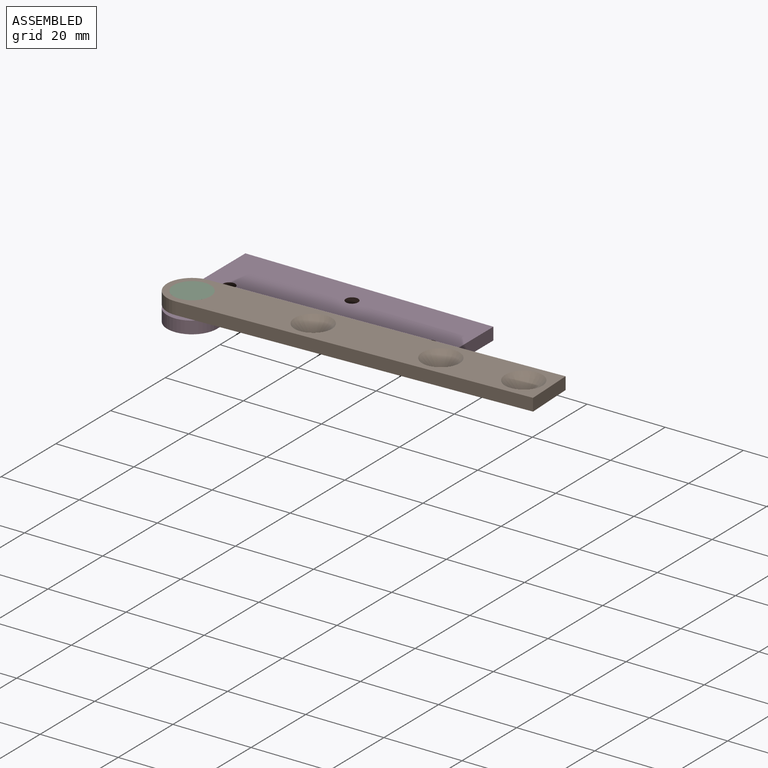
[diagram: assembled view]
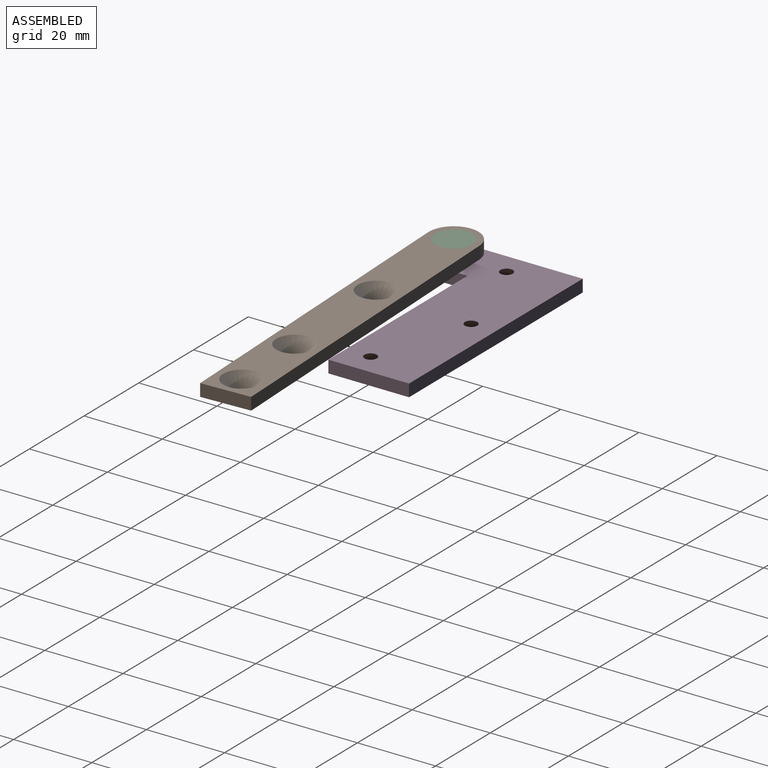
[diagram: assembled view, second angle]
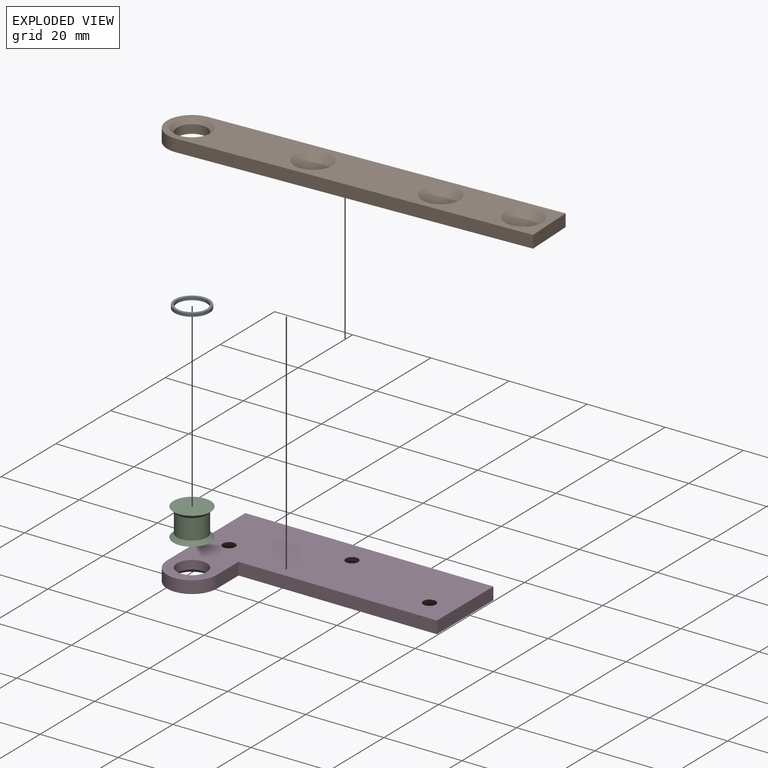
[diagram: exploded view]
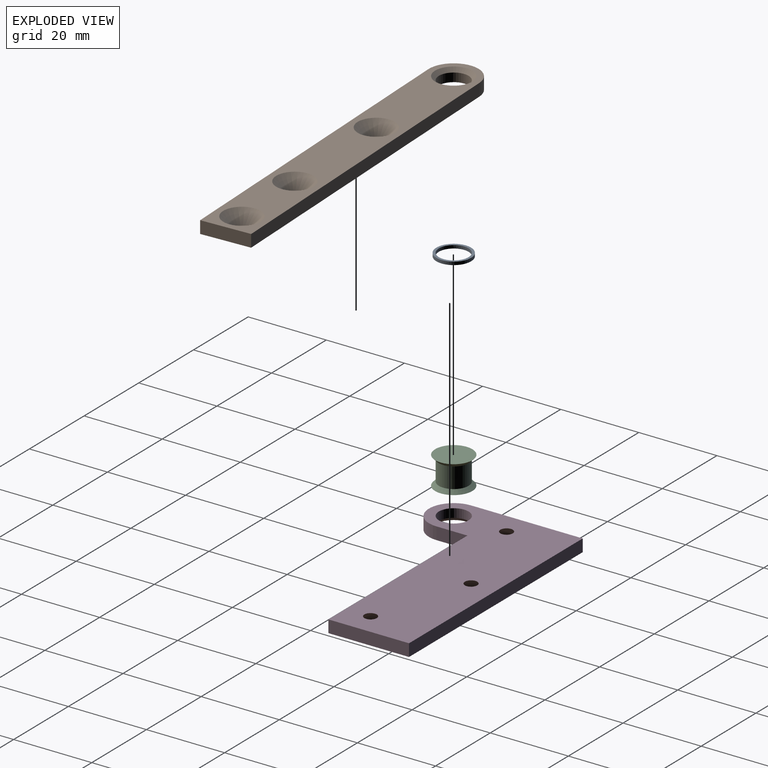
[diagram: exploded view, second angle]
ASSEMBLY  parts=4 mates=6
PART A: 4 faces, bbox 8.9x0.8x8.9 mm
  f0: cylinder r=3.81mm len=7.62mm, axis (0,1,0), area 19mm2, adj f2,f3
  f1: cylinder r=4.45mm len=8.89mm, axis (0,1,0), area 22.2mm2, adj f2,f3
  f2: plane 8.89x8.89mm, normal (0,-1,0), area 16.5mm2, adj f0,f1
  f3: plane 8.89x8.89mm, normal (0,1,0), area 16.5mm2, adj f0,f1
PART B: 11 faces, bbox 12.7x3.2x95.3 mm
  f0: plane 88.9x3.18mm, normal (-1,0,0), area 282.3mm2, adj f1,f3,f4,f5
  f1: cylinder r=6.35mm len=12.7mm, axis (0,1,0), area 63.3mm2, adj f0,f2,f4,f5
  f2: plane 88.9x3.18mm, normal (1,0,0), area 282.3mm2, adj f1,f3,f4,f5
  f3: plane 12.7x3.18mm, normal (0,0,1), area 40.3mm2, adj f0,f2,f4,f5
  f4: plane 95.25x12.7mm, normal (0,-1,0), area 1123mm2, adj f0,f1,f2,f3,f6,f7,f8,f9
  f5: plane 95.25x12.7mm, normal (0,1,0), area 907.3mm2, adj f0,f1,f2,f3,f6,f7,f8,f10
  f6: cone r=1.27mm half-angle=45deg, axis (0,1,0), area 89.6mm2, adj f4,f5
  f7: cone r=1.27mm half-angle=45deg, axis (0,1,0), area 89.6mm2, adj f4,f5
  f8: cone r=1.27mm half-angle=45deg, axis (0,1,0), area 89.6mm2, adj f4,f5
  f9: cylinder r=3.81mm len=7.62mm, axis (0,1,0), area 53.2mm2, adj f4,f10
  f10: cone r=3.81mm half-angle=45deg, axis (0,1,0), area 36.3mm2, adj f5,f9
PART C: 5 faces, bbox 9.5x9.5x7.1 mm
  f0: plane 9.53x9.53mm, normal (0,0,1), area 71.3mm2, adj f1
  f1: cone r=4.76mm half-angle=45deg, axis (0,0,1), area 36.3mm2, adj f0,f2
  f2: cylinder r=3.81mm len=7.62mm, axis (0,0,1), area 125.4mm2, adj f1,f3
  f3: cone r=3.81mm half-angle=45deg, axis (0,0,-1), area 36.3mm2, adj f2,f4
  f4: plane 9.53x9.53mm, normal (0,0,-1), area 71.3mm2, adj f3
PART D: 13 faces, bbox 63.5x34.9x3.2 mm
  f0: cylinder r=6.35mm len=12.7mm, axis (0,0,-1), area 63.3mm2, adj f1,f5,f6,f7
  f1: plane 7.94x3.18mm, normal (1,0,0), area 25.2mm2, adj f0,f2,f6,f7
  f2: plane 50.8x3.18mm, normal (0,-1,0), area 161.3mm2, adj f1,f3,f6,f7
  f3: plane 20.64x3.18mm, normal (1,0,0), area 65.5mm2, adj f2,f4,f6,f7
  f4: plane 63.5x3.18mm, normal (0,1,0), area 201.6mm2, adj f3,f5,f6,f7
  f5: plane 28.58x3.18mm, normal (-1,0,0), area 90.7mm2, adj f0,f4,f6,f7
  f6: plane 63.5x34.93mm, normal (0,0,1), area 1405.3mm2, adj f0,f1,f2,f3,f4,f5,f8,f9
  f7: plane 63.5x34.93mm, normal (0,0,-1), area 1189.6mm2, adj f0,f1,f2,f3,f4,f5,f8,f9
  f8: cone r=1.27mm half-angle=45deg, axis (0,0,-1), area 89.6mm2, adj f6,f7
  f9: cone r=1.27mm half-angle=45deg, axis (0,0,-1), area 89.6mm2, adj f6,f7
  f10: cone r=1.27mm half-angle=45deg, axis (0,0,-1), area 89.6mm2, adj f6,f7
  f11: cylinder r=3.81mm len=7.62mm, axis (0,0,-1), area 53.2mm2, adj f6,f12
  f12: cone r=3.81mm half-angle=45deg, axis (0,0,-1), area 36.3mm2, adj f7,f11
PLACE A rot(axis=(-1,0,0),90deg) t=(-55.55,-22.24,11.02)mm
PLACE B rot(axis=(0.56,0.59,0.59),121.4deg) t=(-55.55,-22.24,14.98)mm
PLACE C rot(axis=(0,0,-1),29.9deg) t=(-55.55,-22.24,14.98)mm
PLACE D t=(-30.15,-3.98,7.84)mm fixed
MATE revolute B.f1 <-> A.f0  axis (0,0,-1) through (-55.55,-22.24,11.81)mm
MATE revolute C.f1 <-> B.f1  axis (0,0,1) through (-55.55,-22.24,14.98)mm
MATE planar B.f1 <-> A.f0  axis (0,0,-1) through (-55.55,-22.24,11.81)mm
MATE revolute A.f0 <-> D.f0  axis (0,0,-1) through (-55.55,-22.24,11.02)mm
MATE planar B.f5 <-> C.f1  axis (0,0,1) through (-14.18,-20.47,14.98)mm
MATE planar D.f6 <-> A.f0  axis (0,0,1) through (-32.3,-5.33,11.02)mm
